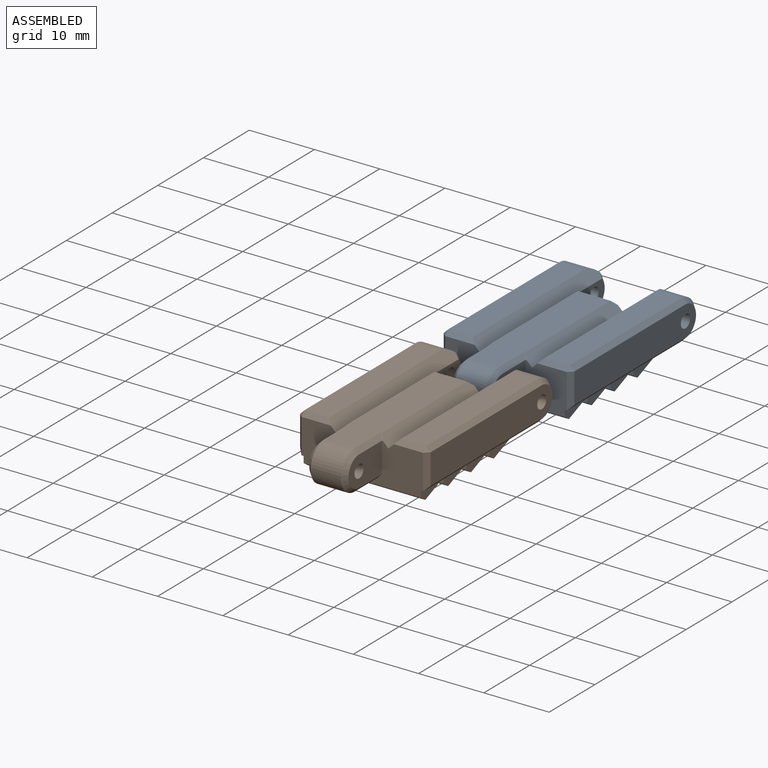
[diagram: assembled view]
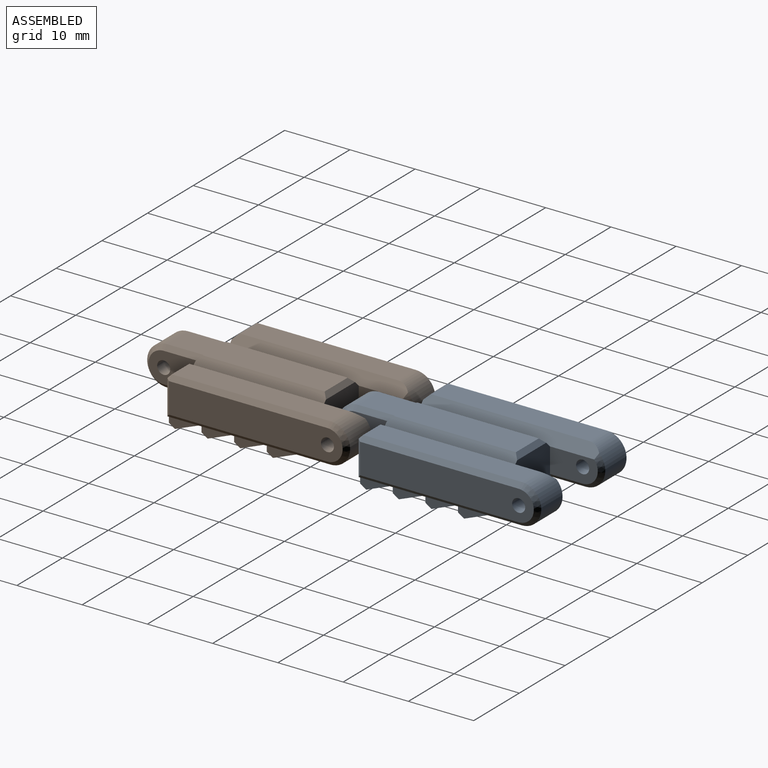
[diagram: assembled view, second angle]
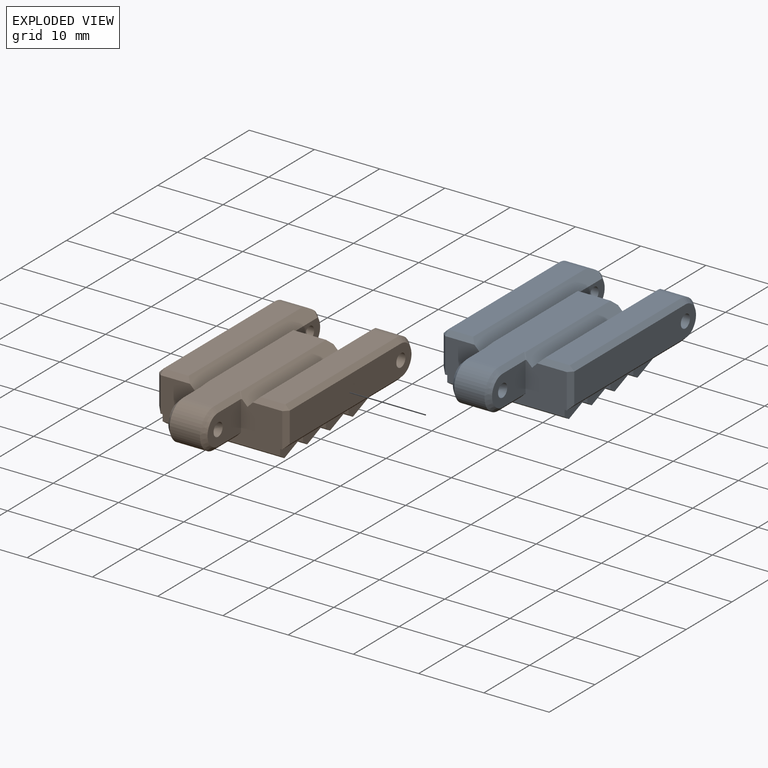
[diagram: exploded view]
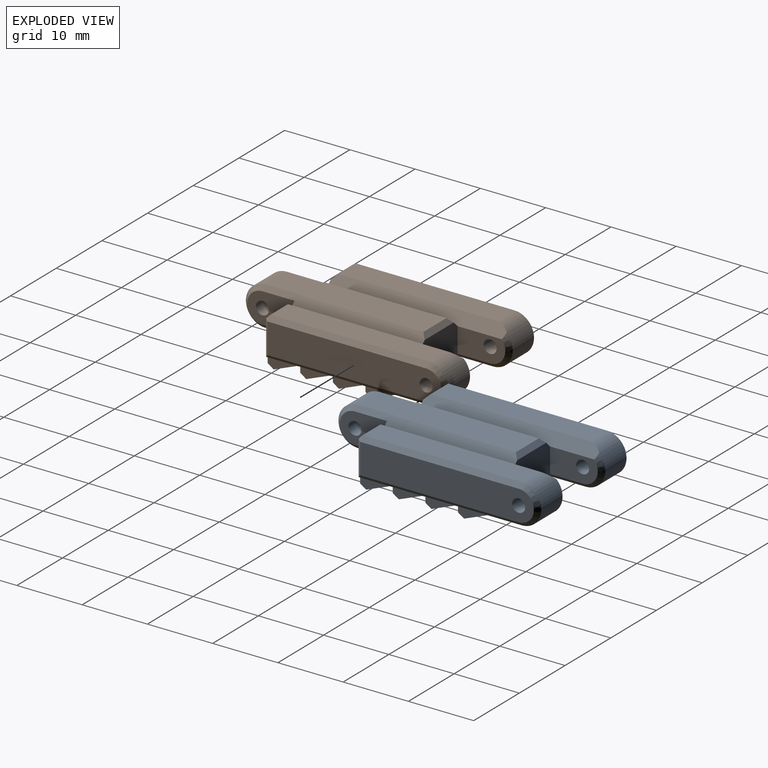
[diagram: exploded view, second angle]
ASSEMBLY  parts=2 mates=2
PART A: 69 faces, bbox 20x36x7.7 mm
  f0: cylinder r=3mm len=6mm, axis (-1,0,0), area 42.6mm2, adj f2,f8,f11,f39,f65
  f1: plane 24.32x5mm, normal (0,0,1), area 119.6mm2, adj f7,f9,f13,f45,f47,f56,f66,f68
  f2: plane 24.32x3.82mm, normal (0,0,1), area 93mm2, adj f0,f6,f41,f65
  f3: plane 8.44x4.86mm, normal (0,1,0), area 38.3mm2, adj f4,f5,f9,f57,f58,f60,f66,f68
  f4: plane 7.32x3.82mm, normal (1,0,0), area 23.4mm2, adj f3,f17,f57,f59,f67
  f5: plane 7.32x3.82mm, normal (-1,0,0), area 23.4mm2, adj f3,f8,f15,f60,f65
  f6: plane 4.5x0.68mm, normal (0,-0.71,0.71), area 4mm2, adj f2,f21,f43,f65
  f7: plane 0.85x0.68mm, normal (0,-0.71,0.71), area 0.2mm2, adj f1,f21,f56,f68
  f8: cone r=2.32mm half-angle=45deg, axis (1,0,0), area 5.9mm2, adj f0,f5,f60,f65
  f9: plane 6.35x0.68mm, normal (0,0.71,0.71), area 5.4mm2, adj f1,f3,f66,f68
  f10: plane 25x4.65mm, normal (0,0,-1), area 31mm2, adj f16,f21,f27,f31,f34,f38,f48,f57
  f11: plane 25x4.65mm, normal (0,0,-1), area 31mm2, adj f0,f21,f26,f30,f33,f37,f40,f58
  f12: plane 5x4.65mm, normal (0,0,-1), area 23.2mm2, adj f13,f21,f44,f53
  f13: cylinder r=3mm len=6mm, axis (-1,0,0), area 43.8mm2, adj f1,f12,f46,f55
  f14: plane 24.32x3.82mm, normal (0,0,1), area 93mm2, adj f16,f51,f54,f67
  f15: cylinder r=1mm len=6mm, axis (-1,0,0), area 37.7mm2, adj f5,f18
  f16: cylinder r=3mm len=6mm, axis (-1,0,0), area 42.6mm2, adj f10,f14,f49,f59,f67
  f17: cylinder r=1mm len=6mm, axis (-1,0,0), area 37.7mm2, adj f4,f19
  f18: plane 26.65x4.65mm, normal (1,0,0), area 118.3mm2, adj f15,f39,f40,f41,f42
  f19: plane 26.65x4.65mm, normal (-1,0,0), area 118.3mm2, adj f17,f48,f49,f50,f51
  f20: plane 7.32x4.65mm, normal (-1,0,0), area 28.6mm2, adj f21,f23,f53,f55,f56
  f21: plane 18.65x6.32mm, normal (0,-1,0), area 84.4mm2, adj f6,f7,f10,f11,f12,f20,f22,f33
  f22: plane 7.32x4.65mm, normal (1,0,0), area 28.6mm2, adj f21,f23,f44,f46,f47
  f23: cylinder r=1mm len=6mm, axis (-1,0,0), area 37.7mm2, adj f20,f22
  f24: plane 18x1mm, normal (0,-1,0), area 18mm2, adj f26,f27,f36,f61
  f25: plane 18x3.65mm, normal (0,0.37,-0.93), area 70.7mm2, adj f26,f27,f58,f61
  f26: plane 4.69x1.63mm, normal (1,0,0), area 4.5mm2, adj f11,f24,f25,f58,f61
  f27: plane 4.69x1.63mm, normal (-1,0,0), area 4.5mm2, adj f10,f24,f25,f58,f61
  f28: plane 18x1mm, normal (0,-1,0), area 18mm2, adj f30,f31,f32,f63
  f29: plane 18x4.07mm, normal (0,0.37,-0.93), area 78.9mm2, adj f30,f31,f35,f63
  f30: plane 5x1.63mm, normal (1,0,0), area 4.5mm2, adj f11,f28,f29,f63
  f31: plane 5x1.63mm, normal (-1,0,0), area 4.5mm2, adj f10,f28,f29,f63
  f32: plane 18x4.07mm, normal (0,0.37,-0.93), area 78.9mm2, adj f28,f33,f34,f64
  f33: plane 5x1.63mm, normal (1,0,0), area 4.5mm2, adj f11,f21,f32,f64
  f34: plane 5x1.63mm, normal (-1,0,0), area 4.5mm2, adj f10,f21,f32,f64
  f35: plane 18x1mm, normal (0,-1,0), area 18mm2, adj f29,f37,f38,f62
  f36: plane 18x4.07mm, normal (0,0.37,-0.93), area 78.9mm2, adj f24,f37,f38,f62
  f37: plane 5x1.63mm, normal (1,0,0), area 4.5mm2, adj f11,f35,f36,f62
  f38: plane 5x1.63mm, normal (-1,0,0), area 4.5mm2, adj f10,f35,f36,f62
  f39: cone r=2.32mm half-angle=45deg, axis (-1,0,0), area 8mm2, adj f0,f18,f40,f41
  f40: plane 25x0.68mm, normal (0.71,0,-0.71), area 23.6mm2, adj f11,f18,f39,f42
  f41: plane 24.32x0.68mm, normal (0.71,0,0.71), area 23.3mm2, adj f2,f18,f39,f43
  f42: plane 5.32x0.68mm, normal (0.71,-0.71,0), area 4.8mm2, adj f18,f21,f40,f43
  f43: plane 0.68x0.68mm, normal (0.58,-0.58,0.58), area 0.4mm2, adj f6,f41,f42
  f44: plane 5x0.68mm, normal (0.71,0,-0.71), area 4.8mm2, adj f12,f21,f22,f46
  f45: plane 0.85x0.68mm, normal (0,-0.71,0.71), area 0.2mm2, adj f1,f21,f47,f66
  f46: cone r=3mm half-angle=45deg, axis (-1,0,0), area 8mm2, adj f13,f22,f44,f47
  f47: plane 5.68x0.68mm, normal (0.71,0,0.71), area 5.1mm2, adj f1,f22,f45,f46
  f48: plane 25x0.68mm, normal (-0.71,0,-0.71), area 23.6mm2, adj f10,f19,f49,f50
  f49: cone r=3mm half-angle=45deg, axis (1,0,0), area 8mm2, adj f16,f19,f48,f51
  f50: plane 5.32x0.68mm, normal (-0.71,-0.71,0), area 4.8mm2, adj f19,f21,f48,f52
  f51: plane 24.32x0.68mm, normal (-0.71,0,0.71), area 23.3mm2, adj f14,f19,f49,f52
  f52: plane 0.68x0.68mm, normal (-0.58,-0.58,0.58), area 0.4mm2, adj f50,f51,f54
  f53: plane 5x0.68mm, normal (-0.71,0,-0.71), area 4.8mm2, adj f12,f20,f21,f55
  f54: plane 4.5x0.68mm, normal (0,-0.71,0.71), area 4mm2, adj f14,f21,f52,f67
  f55: cone r=2.32mm half-angle=45deg, axis (1,0,0), area 8mm2, adj f13,f20,f53,f56
  f56: plane 5.68x0.68mm, normal (-0.71,0,0.71), area 5.1mm2, adj f1,f7,f20,f55
  f57: plane 5.31x0.68mm, normal (0.71,0,-0.71), area 4.9mm2, adj f3,f4,f10,f58,f59
  f58: plane 18x0.63mm, normal (0,0.83,-0.56), area 8.6mm2, adj f3,f10,f11,f25,f26,f27,f57,f60
  f59: cone r=3mm half-angle=45deg, axis (-1,0,0), area 5.9mm2, adj f4,f16,f57,f67
  f60: plane 5.31x0.68mm, normal (-0.71,0,-0.71), area 4.9mm2, adj f3,f5,f8,f11,f58
  f61: plane 18x0.93mm, normal (0,-0.56,-0.83), area 20.2mm2, adj f24,f25,f26,f27
  f62: plane 18x0.93mm, normal (0,-0.56,-0.83), area 20.2mm2, adj f35,f36,f37,f38
  f63: plane 18x0.93mm, normal (0,-0.56,-0.83), area 20.2mm2, adj f28,f29,f30,f31
  f64: plane 18x0.93mm, normal (0,-0.56,-0.83), area 20.2mm2, adj f21,f32,f33,f34
  f65: plane 27.09x1.53mm, normal (-0.71,0,0.71), area 56.2mm2, adj f0,f2,f5,f6,f8,f21,f66
  f66: plane 20x1.5mm, normal (0.71,0,0.71), area 41.8mm2, adj f1,f3,f9,f21,f45,f65
  f67: plane 27.09x1.53mm, normal (0.71,0,0.71), area 56.2mm2, adj f4,f14,f16,f21,f54,f59,f68
  f68: plane 20x1.5mm, normal (-0.71,0,0.71), area 41.8mm2, adj f1,f3,f7,f9,f21,f67
PART B: same geometry as A
PLACE A t=(-25.61,-5.04,11.8)mm
PLACE B t=(-26.61,-35.04,11.8)mm
MATE planar A.f22 <-> B.f5  axis (1,0,0) through (-22.61,-3.3,11.8)mm
MATE cylindrical A.f23 <-> B.f15  axis (-1,0,0) through (-22.61,-5.04,11.8)mm
